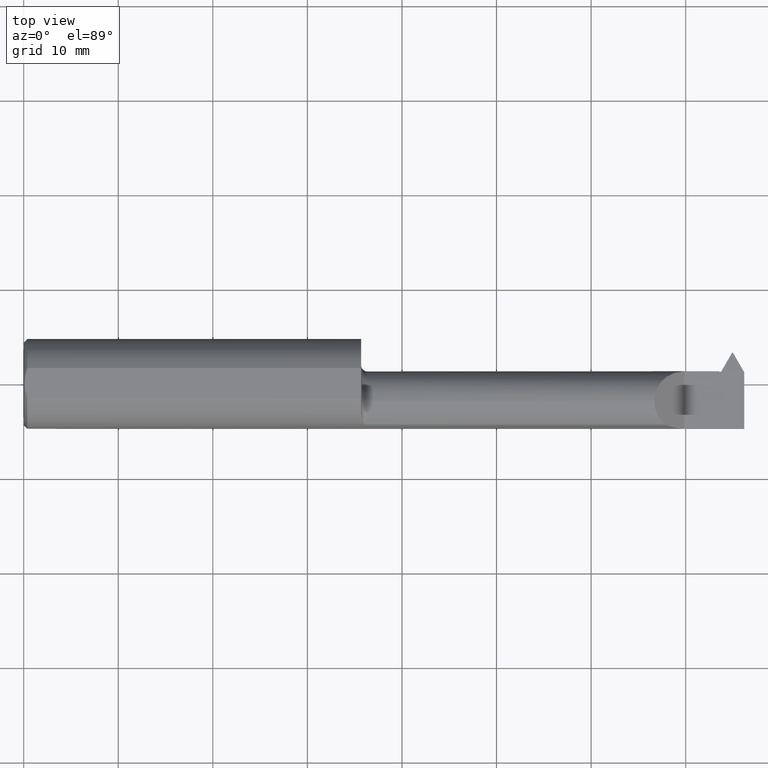
[diagram: clean part render]
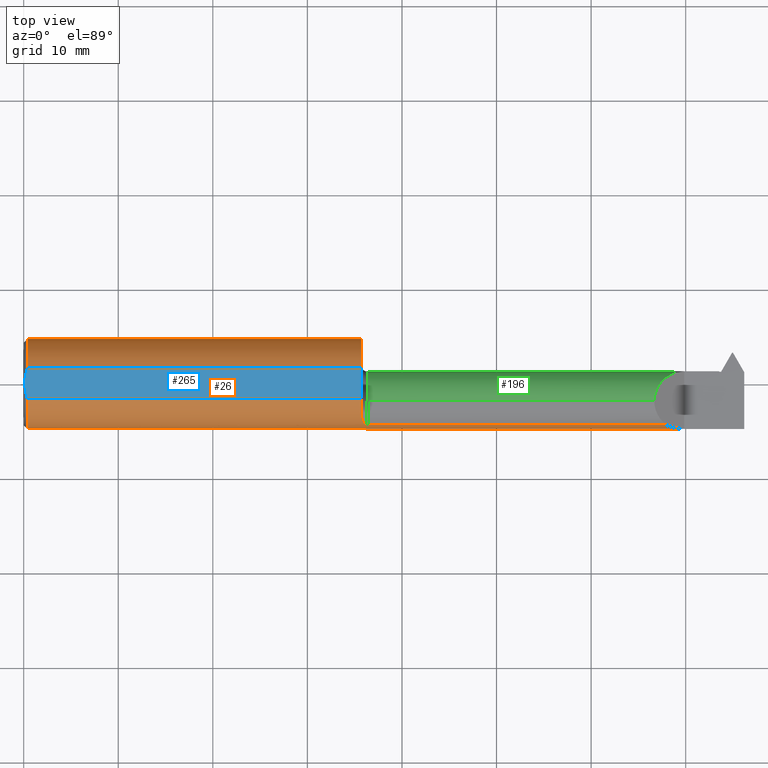
[diagram: same view with three faces highlighted in distinct colors, each labeled with its STEP entity id]
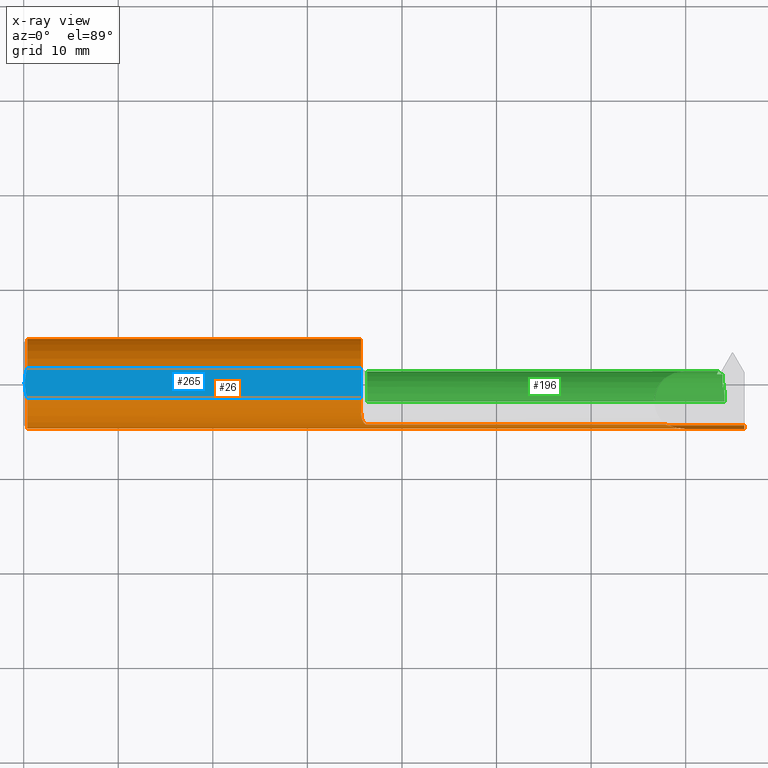
[diagram: x-ray of the same camera — body ghosted, the three highlighted faces saturated]
A machine part, top view with three faces highlighted in distinct colors.
The next image is the same camera in x-ray (body ghosted, the three faces saturated) — at least one of them is partly hidden behind the body in this view.
Their STEP definitions:

[orange] entity #26 — the highlighted cylindrical surface (partial cylindrical patch) has radius 4.7587 mm, axis along (-1, -0, -0).
#1 = EDGE_CURVE ( 'NONE', #896, #42, #100, .T. ) ;
#3 = CARTESIAN_POINT ( 'NONE',  ( 1.429999999999999938, -0.1707639599170698019, -0.07706940050007766996 ) ) ;
#17 = EDGE_CURVE ( 'NONE', #130, #91, #707, .T. ) ;
#25 = AXIS2_PLACEMENT_3D ( 'NONE', #854, #720, #41 ) ;
#26 = ADVANCED_FACE ( 'NONE', ( #403 ), #494, .T. ) ;
#29 = DIRECTION ( 'NONE',  ( -1.000000000000000000, -0.000000000000000000, -0.000000000000000000 ) ) ;
#41 = DIRECTION ( 'NONE',  ( 0.000000000000000000, 0.000000000000000000, 1.000000000000000000 ) ) ;
#42 = VERTEX_POINT ( 'NONE', #350 ) ;
#44 = CARTESIAN_POINT ( 'NONE',  ( 1.405000000000000693, -0.1343272889970693607, -0.1314247431986991232 ) ) ;
#46 = ORIENTED_EDGE ( 'NONE', *, *, #966, .T. ) ;
#47 = ORIENTED_EDGE ( 'NONE', *, *, #17, .F. ) ;
#76 = CARTESIAN_POINT ( 'NONE',  ( 1.405000000000000249, -0.1232518659295093050, 0.1410992560040422727 ) ) ;
#81 = CARTESIAN_POINT ( 'NONE',  ( 1.405000000000000249, -0.1232518659295093050, -0.1410992560040422727 ) ) ;
#88 = EDGE_CURVE ( 'NONE', #709, #936, #317, .T. ) ;
#91 = VERTEX_POINT ( 'NONE', #259 ) ;
#95 = B_SPLINE_CURVE_WITH_KNOTS ( 'NONE', 3,
 ( #138, #539, #838, #744, #435, #890, #219, #385, #680, #506, #163, #801, #458, #129 ),
 .UNSPECIFIED., .F., .F.,
 ( 4, 2, 2, 2, 2, 2, 4 ),
 ( 0.000000000000000000, 0.0001403017184444719210, 0.0002806034368889438421, 0.0005612068737778984177, 0.001122413747555806593, 0.001683620621333714769, 0.002244827495111622728 ),
 .UNSPECIFIED. ) ;
#100 = LINE ( 'NONE', #639, #301 ) ;
#113 = DIRECTION ( 'NONE',  ( 1.000000000000000000, 0.000000000000000000, 0.000000000000000000 ) ) ;
#115 = ORIENTED_EDGE ( 'NONE', *, *, #388, .T. ) ;
#127 = CARTESIAN_POINT ( 'NONE',  ( 2.673280599499922694, -0.1707639599170701628, 0.07706940050007689280 ) ) ;
#128 = CARTESIAN_POINT ( 'NONE',  ( 1.405000000000000249, -0.1232518659295093050, -0.1410992560040422727 ) ) ;
#129 = CARTESIAN_POINT ( 'NONE',  ( 1.405000000000000249, -0.1232518659295093050, 0.1410992560040422727 ) ) ;
#130 = VERTEX_POINT ( 'NONE', #320 ) ;
#138 = CARTESIAN_POINT ( 'NONE',  ( 1.429999999999999938, -0.1707639599170698019, 0.07706940050007766996 ) ) ;
#146 = EDGE_LOOP ( 'NONE', ( #47, #184, #115, #46, #651, #975, #445, #788, #302, #240, #396, #631, #557, #474 ) ) ;
#156 = VECTOR ( 'NONE', #878, 39.37007874015748143 ) ;
#158 = DIRECTION ( 'NONE',  ( 0.000000000000000000, 0.000000000000000000, 1.000000000000000000 ) ) ;
#162 = CARTESIAN_POINT ( 'NONE',  ( 2.750000000000000444, -0.1873499999999999610, -6.429183357567478880E-17 ) ) ;
#163 = CARTESIAN_POINT ( 'NONE',  ( 1.407031986092417419, -0.1437385609081069937, 0.1203809478627893836 ) ) ;
#184 = ORIENTED_EDGE ( 'NONE', *, *, #437, .F. ) ;
#188 = VECTOR ( 'NONE', #650, 39.37007874015748143 ) ;
#202 = VERTEX_POINT ( 'NONE', #81 ) ;
#214 = EDGE_CURVE ( 'NONE', #449, #936, #95, .T. ) ;
#219 = CARTESIAN_POINT ( 'NONE',  ( 1.417679829691370408, -0.1652024577544480566, 0.08842811073770914798 ) ) ;
#236 = CIRCLE ( 'NONE', #613, 0.1873499999999999888 ) ;
#240 = ORIENTED_EDGE ( 'NONE', *, *, #925, .T. ) ;
#250 = CARTESIAN_POINT ( 'NONE',  ( 1.405000000000000249, 0.000000000000000000, 0.000000000000000000 ) ) ;
#259 = CARTESIAN_POINT ( 'NONE',  ( 1.429999999999999938, -0.1707639599170698019, -0.07706940050007766996 ) ) ;
#266 = EDGE_CURVE ( 'NONE', #709, #845, #690, .T. ) ;
#270 = VECTOR ( 'NONE', #29, 39.37007874015748143 ) ;
#289 = CARTESIAN_POINT ( 'NONE',  ( 1.417704374933955069, -0.1652286770924342729, -0.08837992419368186081 ) ) ;
#298 = AXIS2_PLACEMENT_3D ( 'NONE', #250, #843, #551 ) ;
#301 = VECTOR ( 'NONE', #113, 39.37007874015748143 ) ;
#302 = ORIENTED_EDGE ( 'NONE', *, *, #266, .T. ) ;
#304 = DIRECTION ( 'NONE',  ( 1.000000000000000000, -0.000000000000000000, -0.000000000000000000 ) ) ;
#314 = CIRCLE ( 'NONE', #957, 0.1873499999999999888 ) ;
#317 = CIRCLE ( 'NONE', #521, 0.1873499999999999888 ) ;
#320 = CARTESIAN_POINT ( 'NONE',  ( 3.000000000000000444, -0.1707639599170698019, -0.07706940050007768384 ) ) ;
#338 = DIRECTION ( 'NONE',  ( 1.000000000000000000, 0.000000000000000000, 0.000000000000000000 ) ) ;
#340 = EDGE_CURVE ( 'NONE', #885, #896, #715, .T. ) ;
#347 = DIRECTION ( 'NONE',  ( 0.000000000000000000, 0.000000000000000000, -1.000000000000000000 ) ) ;
#350 = CARTESIAN_POINT ( 'NONE',  ( 1.405000000000000249, 0.06325108694718233060, 0.1763499999999999790 ) ) ;
#365 = CIRCLE ( 'NONE', #782, 0.1873499999999999888 ) ;
#372 = EDGE_CURVE ( 'NONE', #202, #42, #766, .T. ) ;
#374 = EDGE_CURVE ( 'NONE', #550, #727, #954, .T. ) ;
#385 = CARTESIAN_POINT ( 'NONE',  ( 1.413471533398396041, -0.1602710687746327634, 0.09725558226055720790 ) ) ;
#388 = EDGE_CURVE ( 'NONE', #794, #969, #870, .T. ) ;
#394 = CARTESIAN_POINT ( 'NONE',  ( 0.01500000000000407431, 0.000000000000000000, 0.000000000000000000 ) ) ;
#396 = ORIENTED_EDGE ( 'NONE', *, *, #340, .T. ) ;
#397 = DIRECTION ( 'NONE',  ( 1.000000000000000000, -0.000000000000000000, -0.000000000000000000 ) ) ;
#402 = CARTESIAN_POINT ( 'NONE',  ( 3.000000000000000444, -0.06325108694718233060, 0.1763499999999999235 ) ) ;
#403 = FACE_OUTER_BOUND ( 'NONE', #146, .T. ) ;
#408 = CARTESIAN_POINT ( 'NONE',  ( 2.750000000000000444, -0.1873496730715054903, 0.0003499999999995605151 ) ) ;
#424 = CARTESIAN_POINT ( 'NONE',  ( 1.405000000000000249, -0.06325108694718215019, 0.1763499999999999790 ) ) ;
#428 = CARTESIAN_POINT ( 'NONE',  ( 2.673280599499922694, -0.1707639599170701628, 0.07706940050007689280 ) ) ;
#435 = CARTESIAN_POINT ( 'NONE',  ( 1.422402770576354669, -0.1687580686002391750, 0.08138221229323112926 ) ) ;
#437 = EDGE_CURVE ( 'NONE', #794, #130, #314, .T. ) ;
#444 = CARTESIAN_POINT ( 'NONE',  ( 1.419299808151413878, -0.1667638676707170198, -0.08543442767820327854 ) ) ;
#445 = ORIENTED_EDGE ( 'NONE', *, *, #214, .T. ) ;
#447 = DIRECTION ( 'NONE',  ( 0.000000000000000000, 0.000000000000000000, -1.000000000000000000 ) ) ;
#449 = VERTEX_POINT ( 'NONE', #717 ) ;
#458 = CARTESIAN_POINT ( 'NONE',  ( 1.405000000000000471, -0.1287813884456101843, 0.1362691528049926049 ) ) ;
#474 = ORIENTED_EDGE ( 'NONE', *, *, #821, .T. ) ;
#483 = VECTOR ( 'NONE', #659, 39.37007874015748143 ) ;
#487 = CARTESIAN_POINT ( 'NONE',  ( 1.405000000000000249, 0.000000000000000000, 0.000000000000000000 ) ) ;
#494 = CYLINDRICAL_SURFACE ( 'NONE', #25, 0.1873499999999999888 ) ;
#506 = CARTESIAN_POINT ( 'NONE',  ( 1.408207941101452310, -0.1482224317505124456, 0.1148057762150967304 ) ) ;
#509 = CARTESIAN_POINT ( 'NONE',  ( 1.406555970616604867, -0.1439812988895033119, -0.1207222593517345843 ) ) ;
#521 = AXIS2_PLACEMENT_3D ( 'NONE', #487, #338, #634 ) ;
#528 = CARTESIAN_POINT ( 'NONE',  ( 0.01500000000000406737, -0.06325108694718213631, 0.1763499999999999790 ) ) ;
#539 = CARTESIAN_POINT ( 'NONE',  ( 1.428119196786478140, -0.1707639599170697464, 0.07706940050007766996 ) ) ;
#550 = VERTEX_POINT ( 'NONE', #976 ) ;
#551 = DIRECTION ( 'NONE',  ( 0.000000000000000000, 0.000000000000000000, -1.000000000000000000 ) ) ;
#557 = ORIENTED_EDGE ( 'NONE', *, *, #372, .F. ) ;
#571 = LINE ( 'NONE', #735, #156 ) ;
#604 = CARTESIAN_POINT ( 'NONE',  ( 1.428132574457247728, -0.1707639599170698574, -0.07706940050007766996 ) ) ;
#607 = CARTESIAN_POINT ( 'NONE',  ( 2.750000000000000444, 0.000000000000000000, 0.000000000000000000 ) ) ;
#613 = AXIS2_PLACEMENT_3D ( 'NONE', #672, #304, #447 ) ;
#631 = ORIENTED_EDGE ( 'NONE', *, *, #1, .T. ) ;
#634 = DIRECTION ( 'NONE',  ( 0.000000000000000000, 0.000000000000000000, -1.000000000000000000 ) ) ;
#639 = CARTESIAN_POINT ( 'NONE',  ( 3.000000000000000444, 0.06325108694718233060, 0.1763499999999999235 ) ) ;
#647 = DIRECTION ( 'NONE',  ( 1.000000000000000000, 0.000000000000000000, 0.000000000000000000 ) ) ;
#650 = DIRECTION ( 'NONE',  ( -1.000000000000000000, -0.000000000000000000, -0.000000000000000000 ) ) ;
#651 = ORIENTED_EDGE ( 'NONE', *, *, #374, .T. ) ;
#652 = CARTESIAN_POINT ( 'NONE',  ( 3.000000000000000444, -0.1873499999999999610, -6.429183357567480113E-17 ) ) ;
#659 = DIRECTION ( 'NONE',  ( -1.000000000000000000, -0.000000000000000000, -0.000000000000000000 ) ) ;
#660 = CARTESIAN_POINT ( 'NONE',  ( 1.411432066522875450, -0.1564710502669967584, -0.1032857535508500957 ) ) ;
#672 = CARTESIAN_POINT ( 'NONE',  ( 0.01500000000000407431, 0.000000000000000000, 0.000000000000000000 ) ) ;
#680 = CARTESIAN_POINT ( 'NONE',  ( 1.411436535702075945, -0.1564726682735309016, 0.1032790376104839453 ) ) ;
#690 = LINE ( 'NONE', #402, #270 ) ;
#706 = CARTESIAN_POINT ( 'NONE',  ( 2.697486258657503466, -0.1816884877910426022, 0.05286374134249623852 ) ) ;
#707 = LINE ( 'NONE', #868, #188 ) ;
#709 = VERTEX_POINT ( 'NONE', #424 ) ;
#715 = CIRCLE ( 'NONE', #972, 0.1873499999999999888 ) ;
#717 = CARTESIAN_POINT ( 'NONE',  ( 1.429999999999999938, -0.1707639599170698019, 0.07706940050007766996 ) ) ;
#720 = DIRECTION ( 'NONE',  ( -1.000000000000000000, -0.000000000000000000, -0.000000000000000000 ) ) ;
#727 = VERTEX_POINT ( 'NONE', #428 ) ;
#735 = CARTESIAN_POINT ( 'NONE',  ( 2.152499999999999858, -0.1707639599170698019, 0.07706940050007766996 ) ) ;
#744 = CARTESIAN_POINT ( 'NONE',  ( 1.423558876738254098, -0.1693773766851885132, 0.08007975305238282382 ) ) ;
#759 = CARTESIAN_POINT ( 'NONE',  ( 0.01500000000000407431, 0.000000000000000000, -0.1873499999999999888 ) ) ;
#766 = CIRCLE ( 'NONE', #298, 0.1873499999999999888 ) ;
#778 = B_SPLINE_CURVE_WITH_KNOTS ( 'NONE', 3,
 ( #128, #44, #509, #660, #962, #289, #444, #967, #977, #895, #604, #3 ),
 .UNSPECIFIED., .F., .F.,
 ( 4, 2, 2, 2, 2, 4 ),
 ( 0.000000000000000000, 0.001104617015978693641, 0.001656925523968040895, 0.001933079777962710402, 0.002071156904960052419, 0.002209234031957393787 ),
 .UNSPECIFIED. ) ;
#782 = AXIS2_PLACEMENT_3D ( 'NONE', #607, #982, #158 ) ;
#788 = ORIENTED_EDGE ( 'NONE', *, *, #88, .F. ) ;
#790 = CARTESIAN_POINT ( 'NONE',  ( 3.000000000000000444, -0.1873499999999998222, -6.429183357567480113E-17 ) ) ;
#794 = VERTEX_POINT ( 'NONE', #790 ) ;
#801 = CARTESIAN_POINT ( 'NONE',  ( 1.405424272813303066, -0.1340287381043765158, 0.1311054684688081062 ) ) ;
#806 = EDGE_CURVE ( 'NONE', #449, #727, #571, .T. ) ;
#817 = CARTESIAN_POINT ( 'NONE',  ( 0.01500000000000407431, 0.06325108694718213631, 0.1763499999999999790 ) ) ;
#821 = EDGE_CURVE ( 'NONE', #202, #91, #778, .T. ) ;
#838 = CARTESIAN_POINT ( 'NONE',  ( 1.426406265684707408, -0.1703893073657099522, 0.07790344355110688512 ) ) ;
#843 = DIRECTION ( 'NONE',  ( 1.000000000000000000, 0.000000000000000000, 0.000000000000000000 ) ) ;
#845 = VERTEX_POINT ( 'NONE', #528 ) ;
#848 = DIRECTION ( 'NONE',  ( 0.000000000000000000, 0.000000000000000000, -1.000000000000000000 ) ) ;
#854 = CARTESIAN_POINT ( 'NONE',  ( 3.000000000000000444, 0.000000000000000000, 0.000000000000000000 ) ) ;
#857 = CARTESIAN_POINT ( 'NONE',  ( 2.723443328839087574, -0.1873000608423837643, 0.02690667116091299133 ) ) ;
#868 = CARTESIAN_POINT ( 'NONE',  ( 2.152499999999999858, -0.1707639599170698019, -0.07706940050007766996 ) ) ;
#870 = LINE ( 'NONE', #652, #483 ) ;
#878 = DIRECTION ( 'NONE',  ( 1.000000000000000000, 0.000000000000000000, 0.000000000000000000 ) ) ;
#885 = VERTEX_POINT ( 'NONE', #759 ) ;
#890 = CARTESIAN_POINT ( 'NONE',  ( 1.419265545959849550, -0.1667364282984899193, 0.08548857678050758580 ) ) ;
#895 = CARTESIAN_POINT ( 'NONE',  ( 1.426412728618680514, -0.1703887611576448136, -0.07790427710188341237 ) ) ;
#896 = VERTEX_POINT ( 'NONE', #817 ) ;
#925 = EDGE_CURVE ( 'NONE', #845, #885, #236, .T. ) ;
#936 = VERTEX_POINT ( 'NONE', #76 ) ;
#954 =( BOUNDED_CURVE ( )  B_SPLINE_CURVE ( 3, ( #408, #857, #706, #127 ),
 .UNSPECIFIED., .F., .T. ) 
 B_SPLINE_CURVE_WITH_KNOTS ( ( 4, 4 ),
 ( 4.714257142666967049, 5.136341099405663968 ),
 .UNSPECIFIED. ) 
 CURVE ( )  GEOMETRIC_REPRESENTATION_ITEM ( )  RATIONAL_B_SPLINE_CURVE ( ( 1.000000000000000000, 0.9852087820824332320, 0.9852087820824332320, 1.000000000000000000 ) ) 
 REPRESENTATION_ITEM ( '' )  );
#955 = CARTESIAN_POINT ( 'NONE',  ( 3.000000000000000444, 0.000000000000000000, 0.000000000000000000 ) ) ;
#957 = AXIS2_PLACEMENT_3D ( 'NONE', #955, #647, #347 ) ;
#962 = CARTESIAN_POINT ( 'NONE',  ( 1.413464385422889436, -0.1602677418389839292, -0.09726402398944665462 ) ) ;
#966 = EDGE_CURVE ( 'NONE', #969, #550, #365, .T. ) ;
#967 = CARTESIAN_POINT ( 'NONE',  ( 1.422430508348289324, -0.1687732045416836524, -0.08135065796925479431 ) ) ;
#969 = VERTEX_POINT ( 'NONE', #162 ) ;
#972 = AXIS2_PLACEMENT_3D ( 'NONE', #394, #397, #848 ) ;
#975 = ORIENTED_EDGE ( 'NONE', *, *, #806, .F. ) ;
#976 = CARTESIAN_POINT ( 'NONE',  ( 2.750000000000000444, -0.1873496730715054903, 0.0003499999999995605151 ) ) ;
#977 = CARTESIAN_POINT ( 'NONE',  ( 1.423606395404012348, -0.1693970531853374040, -0.08003777040702687862 ) ) ;
#982 = DIRECTION ( 'NONE',  ( -1.000000000000000000, -0.000000000000000000, -0.000000000000000000 ) ) ;

[blue] entity #265 — the highlighted planar face has unit normal (-0, 0, -1).
#1 = EDGE_CURVE ( 'NONE', #896, #42, #100, .T. ) ;
#29 = DIRECTION ( 'NONE',  ( -1.000000000000000000, -0.000000000000000000, -0.000000000000000000 ) ) ;
#42 = VERTEX_POINT ( 'NONE', #350 ) ;
#54 = CARTESIAN_POINT ( 'NONE',  ( 0.004000000000003662952, -0.01076149482173470104, 0.1763499999999999512 ) ) ;
#62 = CARTESIAN_POINT ( 'NONE',  ( 0.004991821518936828857, -0.02143118227845417639, 0.1763499999999999790 ) ) ;
#98 = PLANE ( 'NONE',  #241 ) ;
#100 = LINE ( 'NONE', #639, #301 ) ;
#113 = DIRECTION ( 'NONE',  ( 1.000000000000000000, 0.000000000000000000, 0.000000000000000000 ) ) ;
#186 = DIRECTION ( 'NONE',  ( -0.000000000000000000, 0.000000000000000000, -1.000000000000000000 ) ) ;
#195 = EDGE_CURVE ( 'NONE', #896, #360, #501, .T. ) ;
#241 = AXIS2_PLACEMENT_3D ( 'NONE', #621, #186, #710 ) ;
#262 = CARTESIAN_POINT ( 'NONE',  ( 0.01157529649259233726, -0.05310709997271137461, 0.1763500000000000068 ) ) ;
#265 = ADVANCED_FACE ( 'NONE', ( #324 ), #98, .F. ) ;
#266 = EDGE_CURVE ( 'NONE', #709, #845, #690, .T. ) ;
#270 = VECTOR ( 'NONE', #29, 39.37007874015748143 ) ;
#273 = ORIENTED_EDGE ( 'NONE', *, *, #195, .T. ) ;
#299 = LINE ( 'NONE', #973, #702 ) ;
#301 = VECTOR ( 'NONE', #113, 39.37007874015748143 ) ;
#306 = ORIENTED_EDGE ( 'NONE', *, *, #266, .F. ) ;
#324 = FACE_OUTER_BOUND ( 'NONE', #405, .T. ) ;
#350 = CARTESIAN_POINT ( 'NONE',  ( 1.405000000000000249, 0.06325108694718233060, 0.1763499999999999790 ) ) ;
#360 = VERTEX_POINT ( 'NONE', #555 ) ;
#383 = ORIENTED_EDGE ( 'NONE', *, *, #1, .F. ) ;
#402 = CARTESIAN_POINT ( 'NONE',  ( 3.000000000000000444, -0.06325108694718233060, 0.1763499999999999235 ) ) ;
#405 = EDGE_LOOP ( 'NONE', ( #814, #383, #273, #622, #306 ) ) ;
#424 = CARTESIAN_POINT ( 'NONE',  ( 1.405000000000000249, -0.06325108694718215019, 0.1763499999999999790 ) ) ;
#425 = CARTESIAN_POINT ( 'NONE',  ( 0.004000000000001806798, 1.478949963872918835E-16, 0.1763499999999999790 ) ) ;
#427 = CARTESIAN_POINT ( 'NONE',  ( 0.004000000000001806798, 1.478949963872918835E-16, 0.1763499999999999790 ) ) ;
#501 = B_SPLINE_CURVE_WITH_KNOTS ( 'NONE', 3,
 ( #968, #818, #592, #908, #884, #425 ),
 .UNSPECIFIED., .F., .F.,
 ( 4, 2, 4 ),
 ( 0.004260876108247161481, 0.005070351723613945524, 0.005879827338980729567 ),
 .UNSPECIFIED. ) ;
#515 = EDGE_CURVE ( 'NONE', #360, #845, #952, .T. ) ;
#528 = CARTESIAN_POINT ( 'NONE',  ( 0.01500000000000406737, -0.06325108694718213631, 0.1763499999999999790 ) ) ;
#555 = CARTESIAN_POINT ( 'NONE',  ( 0.004000000000001806798, 1.478949963872918835E-16, 0.1763499999999999790 ) ) ;
#592 = CARTESIAN_POINT ( 'NONE',  ( 0.008798171893812552213, 0.04269596770163364835, 0.1763499999999999790 ) ) ;
#601 = DIRECTION ( 'NONE',  ( 0.000000000000000000, -1.000000000000000000, 0.000000000000000000 ) ) ;
#621 = CARTESIAN_POINT ( 'NONE',  ( 0.000000000000000000, 0.1749999999999999889, 0.1763499999999999790 ) ) ;
#622 = ORIENTED_EDGE ( 'NONE', *, *, #515, .T. ) ;
#636 = CARTESIAN_POINT ( 'NONE',  ( 0.008774081248147729342, -0.04260406931483737281, 0.1763499999999999790 ) ) ;
#639 = CARTESIAN_POINT ( 'NONE',  ( 3.000000000000000444, 0.06325108694718233060, 0.1763499999999999235 ) ) ;
#690 = LINE ( 'NONE', #402, #270 ) ;
#702 = VECTOR ( 'NONE', #601, 39.37007874015748143 ) ;
#709 = VERTEX_POINT ( 'NONE', #424 ) ;
#710 = DIRECTION ( 'NONE',  ( -1.000000000000000000, 0.000000000000000000, 0.000000000000000000 ) ) ;
#789 = CARTESIAN_POINT ( 'NONE',  ( 0.01500000000000406737, -0.06325108694718213631, 0.1763499999999999790 ) ) ;
#814 = ORIENTED_EDGE ( 'NONE', *, *, #889, .F. ) ;
#817 = CARTESIAN_POINT ( 'NONE',  ( 0.01500000000000407431, 0.06325108694718213631, 0.1763499999999999790 ) ) ;
#818 = CARTESIAN_POINT ( 'NONE',  ( 0.01155577088586426382, 0.05304926503900148083, 0.1763499999999999512 ) ) ;
#845 = VERTEX_POINT ( 'NONE', #528 ) ;
#884 = CARTESIAN_POINT ( 'NONE',  ( 0.004000000000003702851, 0.01076648422130179437, 0.1763500000000000068 ) ) ;
#889 = EDGE_CURVE ( 'NONE', #42, #709, #299, .T. ) ;
#896 = VERTEX_POINT ( 'NONE', #817 ) ;
#908 = CARTESIAN_POINT ( 'NONE',  ( 0.005015674426662234536, 0.02160712711892617474, 0.1763499999999999790 ) ) ;
#952 = B_SPLINE_CURVE_WITH_KNOTS ( 'NONE', 3,
 ( #427, #54, #62, #636, #262, #789 ),
 .UNSPECIFIED., .F., .F.,
 ( 4, 2, 4 ),
 ( 0.005879827338980729567, 0.006688927827500036269, 0.007498028316019342970 ),
 .UNSPECIFIED. ) ;
#968 = CARTESIAN_POINT ( 'NONE',  ( 0.01500000000000407431, 0.06325108694718213631, 0.1763499999999999790 ) ) ;
#973 = CARTESIAN_POINT ( 'NONE',  ( 1.405000000000000249, 0.1749999999999999889, 0.1763499999999999790 ) ) ;

[green] entity #196 — the highlighted cylindrical surface (edge-blend (fillet) strip) has radius 3.175 mm, axis along (-1, -0, -0).
#5 =( BOUNDED_CURVE ( )  B_SPLINE_CURVE ( 3, ( #352, #504, #280, #795 ),
 .UNSPECIFIED., .F., .F. ) 
 B_SPLINE_CURVE_WITH_KNOTS ( ( 4, 4 ),
 ( 1.139420741225466882, 1.570796326794926756 ),
 .UNSPECIFIED. ) 
 CURVE ( )  GEOMETRIC_REPRESENTATION_ITEM ( )  RATIONAL_B_SPLINE_CURVE ( ( 1.000000000000000000, 0.9845529495419456101, 0.9845529495419456101, 1.000000000000000000 ) ) 
 REPRESENTATION_ITEM ( '' )  );
#8 = CARTESIAN_POINT ( 'NONE',  ( 2.885548931050876398, 0.04119893105087691493, -0.05226509597430395448 ) ) ;
#16 = EDGE_CURVE ( 'NONE', #983, #82, #107, .T. ) ;
#23 = LINE ( 'NONE', #780, #462 ) ;
#34 = CARTESIAN_POINT ( 'NONE',  ( 2.750000000000000444, -0.07234999999999998377, 0.000000000000000000 ) ) ;
#38 = CARTESIAN_POINT ( 'NONE',  ( 2.913734622005792918, 0.008361908784099300607, -0.09544939905744456721 ) ) ;
#39 = CARTESIAN_POINT ( 'NONE',  ( 1.405000000000000249, -0.07234999999999996989, -0.1250000000000000000 ) ) ;
#57 = CYLINDRICAL_SURFACE ( 'NONE', #911, 0.1250000000000000000 ) ;
#67 = DIRECTION ( 'NONE',  ( 0.000000000000000000, 1.775701195881771191E-15, -1.000000000000000000 ) ) ;
#75 = CARTESIAN_POINT ( 'NONE',  ( 1.405000000000000249, 0.05265000000000001623, -6.429183357567480113E-17 ) ) ;
#78 = VERTEX_POINT ( 'NONE', #123 ) ;
#80 = CARTESIAN_POINT ( 'NONE',  ( 2.909054084941630869, -0.01574417682531629309, -0.1114485566650213616 ) ) ;
#82 = VERTEX_POINT ( 'NONE', #421 ) ;
#85 = CARTESIAN_POINT ( 'NONE',  ( 2.625350000000000517, -0.07234999999999998377, 0.1250000000000000000 ) ) ;
#86 = VERTEX_POINT ( 'NONE', #726 ) ;
#107 =( BOUNDED_CURVE ( )  B_SPLINE_CURVE ( 3, ( #712, #417, #941, #267 ),
 .UNSPECIFIED., .F., .T. ) 
 B_SPLINE_CURVE_WITH_KNOTS ( ( 4, 4 ),
 ( 2.826149962439213681, 3.058127945359548239 ),
 .UNSPECIFIED. ) 
 CURVE ( )  GEOMETRIC_REPRESENTATION_ITEM ( )  RATIONAL_B_SPLINE_CURVE ( ( 1.000000000000000000, 0.9955205433440609264, 0.9955205433440609264, 1.000000000000000000 ) ) 
 REPRESENTATION_ITEM ( '' )  );
#119 = VERTEX_POINT ( 'NONE', #765 ) ;
#120 = VERTEX_POINT ( 'NONE', #85 ) ;
#121 = CARTESIAN_POINT ( 'NONE',  ( 2.917651630723346212, -0.04248585645573376562, -0.1250000000000000555 ) ) ;
#123 = CARTESIAN_POINT ( 'NONE',  ( 1.429999999999999938, -0.07234999999999998377, 0.1250000000000000000 ) ) ;
#135 = CARTESIAN_POINT ( 'NONE',  ( 2.918197582037928672, -0.07235000000000001152, -0.1250000000000000000 ) ) ;
#139 = VECTOR ( 'NONE', #663, 39.37007874015748143 ) ;
#142 =( BOUNDED_CURVE ( )  B_SPLINE_CURVE ( 3, ( #853, #181, #170, #922 ),
 .UNSPECIFIED., .F., .F. ) 
 B_SPLINE_CURVE_WITH_KNOTS ( ( 4, 4 ),
 ( 4.715188984043368059, 6.283185307179586232 ),
 .UNSPECIFIED. ) 
 CURVE ( )  GEOMETRIC_REPRESENTATION_ITEM ( )  RATIONAL_B_SPLINE_CURVE ( ( 1.000000000000000000, 0.8053973591226792905, 0.8053973591226792905, 1.000000000000000000 ) ) 
 REPRESENTATION_ITEM ( '' )  );
#155 = ORIENTED_EDGE ( 'NONE', *, *, #401, .F. ) ;
#170 = CARTESIAN_POINT ( 'NONE',  ( 2.625350000000000517, 0.0007108448279454899175, 0.1250000000000000000 ) ) ;
#171 = ORIENTED_EDGE ( 'NONE', *, *, #382, .F. ) ;
#174 = CARTESIAN_POINT ( 'NONE',  ( 2.908768555666733313, 0.04119893105087690799, -0.05226509597430400306 ) ) ;
#177 = CARTESIAN_POINT ( 'NONE',  ( 2.750000000000000444, 0.05264950999903968143, 0.0003499999999995605151 ) ) ;
#181 = CARTESIAN_POINT ( 'NONE',  ( 2.676939441571128508, 0.05244493963352150206, 0.07341055842887220240 ) ) ;
#187 = CIRCLE ( 'NONE', #330, 0.1250000000000000000 ) ;
#189 = EDGE_CURVE ( 'NONE', #119, #808, #514, .T. ) ;
#196 = ADVANCED_FACE ( 'NONE', ( #215 ), #57, .T. ) ;
#204 = DIRECTION ( 'NONE',  ( -1.000000000000000000, -0.000000000000000000, -0.000000000000000000 ) ) ;
#205 = CIRCLE ( 'NONE', #535, 0.1250000000000000000 ) ;
#206 = CARTESIAN_POINT ( 'NONE',  ( 2.909054084941630869, 0.03909855666502102395, -0.05660582317468441232 ) ) ;
#212 = CARTESIAN_POINT ( 'NONE',  ( 2.750000000000000444, 0.05265000000000000235, -6.429183357567478880E-17 ) ) ;
#215 = FACE_OUTER_BOUND ( 'NONE', #582, .T. ) ;
#216 = VERTEX_POINT ( 'NONE', #174 ) ;
#224 = ORIENTED_EDGE ( 'NONE', *, *, #189, .T. ) ;
#229 = EDGE_CURVE ( 'NONE', #216, #677, #412, .T. ) ;
#233 = CARTESIAN_POINT ( 'NONE',  ( 1.429999999999999938, -0.07234999999999996989, -0.1250000000000000000 ) ) ;
#238 = DIRECTION ( 'NONE',  ( 0.000000000000000000, 0.000000000000000000, -1.000000000000000000 ) ) ;
#239 = DIRECTION ( 'NONE',  ( 0.000000000000000000, 0.000000000000000000, 1.000000000000000000 ) ) ;
#242 = VERTEX_POINT ( 'NONE', #177 ) ;
#267 = CARTESIAN_POINT ( 'NONE',  ( 2.913734622005792918, 0.008361908784099300607, -0.09544939905744456721 ) ) ;
#271 = DIRECTION ( 'NONE',  ( 0.000000000000000000, 0.000000000000000000, 1.000000000000000000 ) ) ;
#274 =( BOUNDED_CURVE ( )  B_SPLINE_CURVE ( 3, ( #135, #121, #565, #38 ),
 .UNSPECIFIED., .F., .T. ) 
 B_SPLINE_CURVE_WITH_KNOTS ( ( 4, 4 ),
 ( 3.320488901919211866, 4.022422357086412603 ),
 .UNSPECIFIED. ) 
 CURVE ( )  GEOMETRIC_REPRESENTATION_ITEM ( )  RATIONAL_B_SPLINE_CURVE ( ( 1.000000000000000000, 0.9593605234527321501, 0.9593605234527321501, 1.000000000000000000 ) ) 
 REPRESENTATION_ITEM ( '' )  );
#280 = CARTESIAN_POINT ( 'NONE',  ( 2.891724317005159861, 0.05265000000000000929, -0.01811476426934099243 ) ) ;
#288 = EDGE_CURVE ( 'NONE', #120, #78, #23, .T. ) ;
#293 = CARTESIAN_POINT ( 'NONE',  ( 2.909171226690768997, 0.03945618158169996587, -0.05593300506160074625 ) ) ;
#309 =( BOUNDED_CURVE ( )  B_SPLINE_CURVE ( 3, ( #898, #293, #907, #748 ),
 .UNSPECIFIED., .F., .T. ) 
 B_SPLINE_CURVE_WITH_KNOTS ( ( 4, 4 ),
 ( 4.411180308844293130, 4.459909643144647440 ),
 .UNSPECIFIED. ) 
 CURVE ( )  GEOMETRIC_REPRESENTATION_ITEM ( )  RATIONAL_B_SPLINE_CURVE ( ( 1.000000000000000000, 0.9998021307870514907, 0.9998021307870514907, 1.000000000000000000 ) ) 
 REPRESENTATION_ITEM ( '' )  );
#315 = ORIENTED_EDGE ( 'NONE', *, *, #288, .F. ) ;
#329 = ORIENTED_EDGE ( 'NONE', *, *, #832, .F. ) ;
#330 = AXIS2_PLACEMENT_3D ( 'NONE', #373, #519, #67 ) ;
#343 = CARTESIAN_POINT ( 'NONE',  ( 2.909054084941630869, 0.03909855666502102395, -0.05660582317468441232 ) ) ;
#352 = CARTESIAN_POINT ( 'NONE',  ( 2.885548931050876398, 0.04119893105087691493, -0.05226509597430395448 ) ) ;
#359 = DIRECTION ( 'NONE',  ( -1.000000000000000000, -0.000000000000000000, -0.000000000000000000 ) ) ;
#361 = EDGE_CURVE ( 'NONE', #242, #120, #142, .T. ) ;
#373 = CARTESIAN_POINT ( 'NONE',  ( 2.909054084941630869, -0.07234999999999998377, 0.000000000000000000 ) ) ;
#382 = EDGE_CURVE ( 'NONE', #86, #82, #274, .T. ) ;
#399 = VERTEX_POINT ( 'NONE', #212 ) ;
#401 = EDGE_CURVE ( 'NONE', #677, #530, #5, .T. ) ;
#412 = LINE ( 'NONE', #785, #691 ) ;
#417 = CARTESIAN_POINT ( 'NONE',  ( 2.911507999980800676, -0.007106926527362509086, -0.1070616118923671395 ) ) ;
#421 = CARTESIAN_POINT ( 'NONE',  ( 2.913734622005792918, 0.008361908784099300607, -0.09544939905744456721 ) ) ;
#439 = DIRECTION ( 'NONE',  ( 1.000000000000000000, 0.000000000000000000, 0.000000000000000000 ) ) ;
#451 = LINE ( 'NONE', #75, #139 ) ;
#456 = CARTESIAN_POINT ( 'NONE',  ( 2.894999999999999574, 0.05265000000000001623, 0.000000000000000000 ) ) ;
#462 = VECTOR ( 'NONE', #486, 39.37007874015748143 ) ;
#486 = DIRECTION ( 'NONE',  ( -1.000000000000000000, -0.000000000000000000, -0.000000000000000000 ) ) ;
#489 = ORIENTED_EDGE ( 'NONE', *, *, #361, .F. ) ;
#503 = VECTOR ( 'NONE', #204, 39.37007874015748143 ) ;
#504 = CARTESIAN_POINT ( 'NONE',  ( 2.888524533471080513, 0.04877309019558892511, -0.03580979902212556854 ) ) ;
#510 = CARTESIAN_POINT ( 'NONE',  ( 2.909266663148387000, 0.03871363218546639701, -0.05735894390892034428 ) ) ;
#514 =( BOUNDED_CURVE ( )  B_SPLINE_CURVE ( 3, ( #879, #510, #731, #206 ),
 .UNSPECIFIED., .F., .F. ) 
 B_SPLINE_CURVE_WITH_KNOTS ( ( 4, 4 ),
 ( 3.446885897117429653, 3.457035344740372995 ),
 .UNSPECIFIED. ) 
 CURVE ( )  GEOMETRIC_REPRESENTATION_ITEM ( )  RATIONAL_B_SPLINE_CURVE ( ( 1.000000000000000000, 0.9999914157445015661, 0.9999914157445015661, 1.000000000000000000 ) ) 
 REPRESENTATION_ITEM ( '' )  );
#516 = CARTESIAN_POINT ( 'NONE',  ( 1.405000000000000249, -0.07234999999999998377, 0.000000000000000000 ) ) ;
#519 = DIRECTION ( 'NONE',  ( -1.000000000000000000, -0.000000000000000000, -0.000000000000000000 ) ) ;
#530 = VERTEX_POINT ( 'NONE', #456 ) ;
#535 = AXIS2_PLACEMENT_3D ( 'NONE', #596, #439, #238 ) ;
#565 = CARTESIAN_POINT ( 'NONE',  ( 2.916100958887599681, -0.01444220765322466217, -0.1147325352947249216 ) ) ;
#567 = ORIENTED_EDGE ( 'NONE', *, *, #739, .T. ) ;
#578 = LINE ( 'NONE', #39, #503 ) ;
#582 = EDGE_LOOP ( 'NONE', ( #171, #567, #784, #315, #489, #827, #697, #155, #964, #329, #224, #682, #666 ) ) ;
#583 = AXIS2_PLACEMENT_3D ( 'NONE', #34, #587, #271 ) ;
#587 = DIRECTION ( 'NONE',  ( -1.000000000000000000, -0.000000000000000000, -0.000000000000000000 ) ) ;
#596 = CARTESIAN_POINT ( 'NONE',  ( 1.429999999999999938, -0.07234999999999998377, 0.000000000000000000 ) ) ;
#629 = EDGE_CURVE ( 'NONE', #399, #530, #451, .T. ) ;
#663 = DIRECTION ( 'NONE',  ( 1.000000000000000000, 0.000000000000000000, 0.000000000000000000 ) ) ;
#666 = ORIENTED_EDGE ( 'NONE', *, *, #16, .T. ) ;
#677 = VERTEX_POINT ( 'NONE', #8 ) ;
#682 = ORIENTED_EDGE ( 'NONE', *, *, #883, .T. ) ;
#691 = VECTOR ( 'NONE', #769, 39.37007874015748143 ) ;
#697 = ORIENTED_EDGE ( 'NONE', *, *, #629, .T. ) ;
#712 = CARTESIAN_POINT ( 'NONE',  ( 2.909054084941630869, -0.01574417682531629309, -0.1114485566650213616 ) ) ;
#726 = CARTESIAN_POINT ( 'NONE',  ( 2.918197582037928672, -0.07235000000000001152, -0.1250000000000000000 ) ) ;
#731 = CARTESIAN_POINT ( 'NONE',  ( 2.909161207634519020, 0.03890704989722490459, -0.05698287188920583834 ) ) ;
#739 = EDGE_CURVE ( 'NONE', #86, #875, #578, .T. ) ;
#748 = CARTESIAN_POINT ( 'NONE',  ( 2.908768555666733313, 0.04119893105087690799, -0.05226509597430400306 ) ) ;
#765 = CARTESIAN_POINT ( 'NONE',  ( 2.909370448767460537, 0.03851830851078643508, -0.05773402954893284283 ) ) ;
#769 = DIRECTION ( 'NONE',  ( -1.000000000000000000, -0.000000000000000000, -0.000000000000000000 ) ) ;
#780 = CARTESIAN_POINT ( 'NONE',  ( 1.405000000000000249, -0.07234999999999998377, 0.1250000000000000000 ) ) ;
#784 = ORIENTED_EDGE ( 'NONE', *, *, #851, .T. ) ;
#785 = CARTESIAN_POINT ( 'NONE',  ( 1.405000000000000249, 0.04119893105087692881, -0.05226509597430394755 ) ) ;
#795 = CARTESIAN_POINT ( 'NONE',  ( 2.894999999999999574, 0.05265000000000001623, 0.000000000000000000 ) ) ;
#802 = EDGE_CURVE ( 'NONE', #242, #399, #923, .T. ) ;
#808 = VERTEX_POINT ( 'NONE', #343 ) ;
#827 = ORIENTED_EDGE ( 'NONE', *, *, #802, .T. ) ;
#832 = EDGE_CURVE ( 'NONE', #119, #216, #309, .T. ) ;
#851 = EDGE_CURVE ( 'NONE', #875, #78, #205, .T. ) ;
#853 = CARTESIAN_POINT ( 'NONE',  ( 2.750000000000000444, 0.05264950999903968143, 0.0003499999999995605151 ) ) ;
#875 = VERTEX_POINT ( 'NONE', #233 ) ;
#879 = CARTESIAN_POINT ( 'NONE',  ( 2.909370448767460537, 0.03851830851078643508, -0.05773402954893284283 ) ) ;
#883 = EDGE_CURVE ( 'NONE', #808, #983, #187, .T. ) ;
#898 = CARTESIAN_POINT ( 'NONE',  ( 2.909370448767460537, 0.03851830851078643508, -0.05773402954893284283 ) ) ;
#907 = CARTESIAN_POINT ( 'NONE',  ( 2.908970555950631809, 0.04034989926761187173, -0.05410966642080931865 ) ) ;
#911 = AXIS2_PLACEMENT_3D ( 'NONE', #516, #359, #239 ) ;
#922 = CARTESIAN_POINT ( 'NONE',  ( 2.625350000000000517, -0.07234999999999998377, 0.1250000000000000000 ) ) ;
#923 = CIRCLE ( 'NONE', #583, 0.1250000000000000000 ) ;
#941 = CARTESIAN_POINT ( 'NONE',  ( 2.913075199203175369, 0.0009645913569530770084, -0.1017045626867880415 ) ) ;
#964 = ORIENTED_EDGE ( 'NONE', *, *, #229, .F. ) ;
#983 = VERTEX_POINT ( 'NONE', #80 ) ;